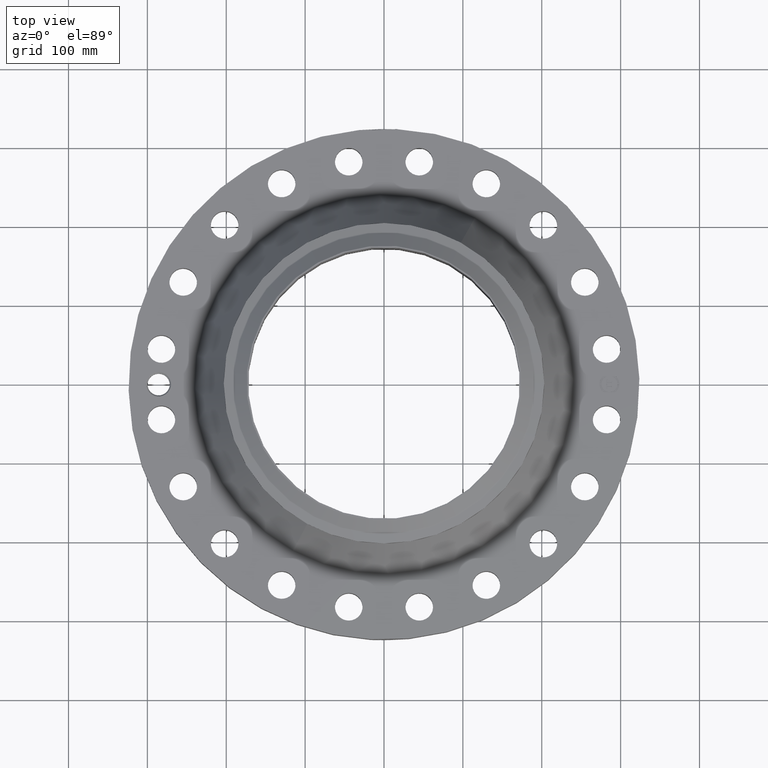
[diagram: clean part render]
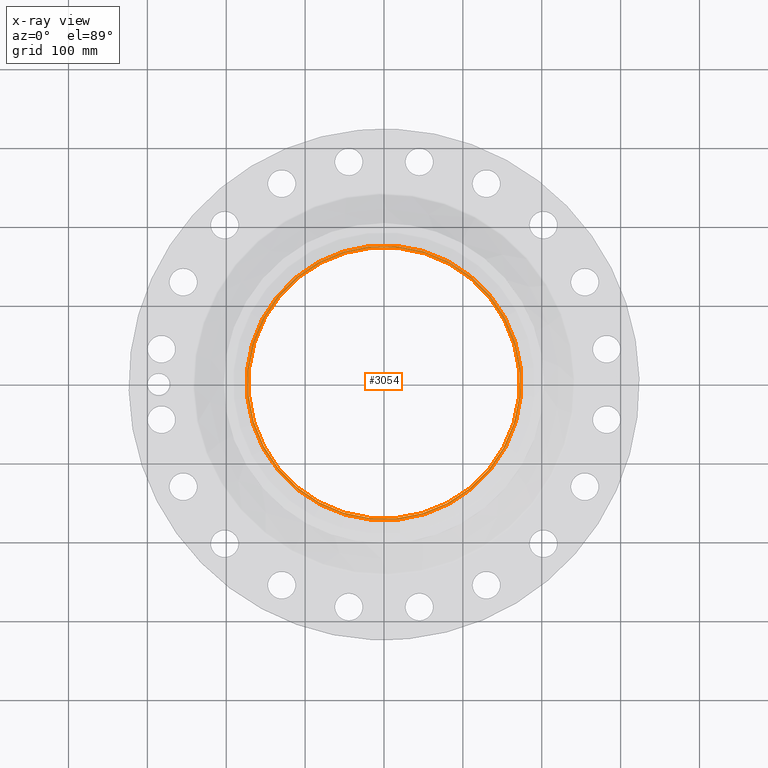
[diagram: x-ray — body ghosted, one internal face saturated and labeled with its STEP entity id]
A machine part, top view, then the same camera in x-ray: the body is ghosted and one INTERNAL B-rep face — a face not visible from any outside direction — is saturated and labeled: STEP entity #3054.
In plain terms, the highlighted planar face has unit normal (0, 0, -1).
Its self-contained STEP definition (entity closure, byte-faithful):
#1590=AXIS2_PLACEMENT_3D('Circle Axis2P3D',#1588,#1589,$) ;
#1658=AXIS2_PLACEMENT_3D('Circle Axis2P3D',#1656,#1657,$) ;
#3030=AXIS2_PLACEMENT_3D('Plane Axis2P3D',#3027,#3028,#3029) ;
#3034=AXIS2_PLACEMENT_3D('Circle Axis2P3D',#3032,#3033,$) ;
#3043=AXIS2_PLACEMENT_3D('Circle Axis2P3D',#3041,#3042,$) ;
#1588=CARTESIAN_POINT('Axis2P3D Location',(0.,0.,5.81000000002)) ;
#1592=CARTESIAN_POINT('Vertex',(3.25098457729,5.9508873522,5.81000000002)) ;
#1594=CARTESIAN_POINT('Vertex',(-3.25098457729,-5.9508873522,5.81000000002)) ;
#1656=CARTESIAN_POINT('Axis2P3D Location',(0.,0.,5.81000000002)) ;
#3027=CARTESIAN_POINT('Axis2P3D Location',(0.,8.00000000003,5.81000000002)) ;
#3032=CARTESIAN_POINT('Axis2P3D Location',(0.,0.,5.81000000002)) ;
#3036=CARTESIAN_POINT('Vertex',(3.2887346197,-6.01998834133,5.81000000002)) ;
#3038=CARTESIAN_POINT('Vertex',(-3.2887346197,6.01998834133,5.81000000002)) ;
#3041=CARTESIAN_POINT('Axis2P3D Location',(0.,0.,5.81000000002)) ;
#1589=DIRECTION('Axis2P3D Direction',(0.,0.,-0.0393700787402)) ;
#1657=DIRECTION('Axis2P3D Direction',(0.,0.,-0.0393700787402)) ;
#3028=DIRECTION('Axis2P3D Direction',(0.,0.,-0.0393700787402)) ;
#3029=DIRECTION('Axis2P3D XDirection',(0.0393700787402,0.,0.)) ;
#3033=DIRECTION('Axis2P3D Direction',(0.,0.,-0.0393700787402)) ;
#3042=DIRECTION('Axis2P3D Direction',(0.,0.,-0.0393700787402)) ;
#3047=ORIENTED_EDGE('',*,*,#3040,.T.) ;
#3048=ORIENTED_EDGE('',*,*,#3045,.T.) ;
#3051=ORIENTED_EDGE('',*,*,#1660,.T.) ;
#3052=ORIENTED_EDGE('',*,*,#1596,.T.) ;
#3053=FACE_BOUND('',#3050,.T.) ;
#3054=ADVANCED_FACE('PartBody',(#3049,#3053),#3031,.F.) ;
#1591=CIRCLE('generated circle',#1590,6.78100000003) ;
#1659=CIRCLE('generated circle',#1658,6.78100000003) ;
#3035=CIRCLE('generated circle',#3034,6.85974015751) ;
#3044=CIRCLE('generated circle',#3043,6.85974015751) ;
#1596=EDGE_CURVE('',#1593,#1595,#1591,.T.) ;
#1660=EDGE_CURVE('',#1595,#1593,#1659,.T.) ;
#3040=EDGE_CURVE('',#3037,#3039,#3035,.F.) ;
#3045=EDGE_CURVE('',#3039,#3037,#3044,.F.) ;
#3046=EDGE_LOOP('',(#3047,#3048)) ;
#3050=EDGE_LOOP('',(#3051,#3052)) ;
#3049=FACE_OUTER_BOUND('',#3046,.T.) ;
#3031=PLANE('',#3030) ;
#1593=VERTEX_POINT('',#1592) ;
#1595=VERTEX_POINT('',#1594) ;
#3037=VERTEX_POINT('',#3036) ;
#3039=VERTEX_POINT('',#3038) ;